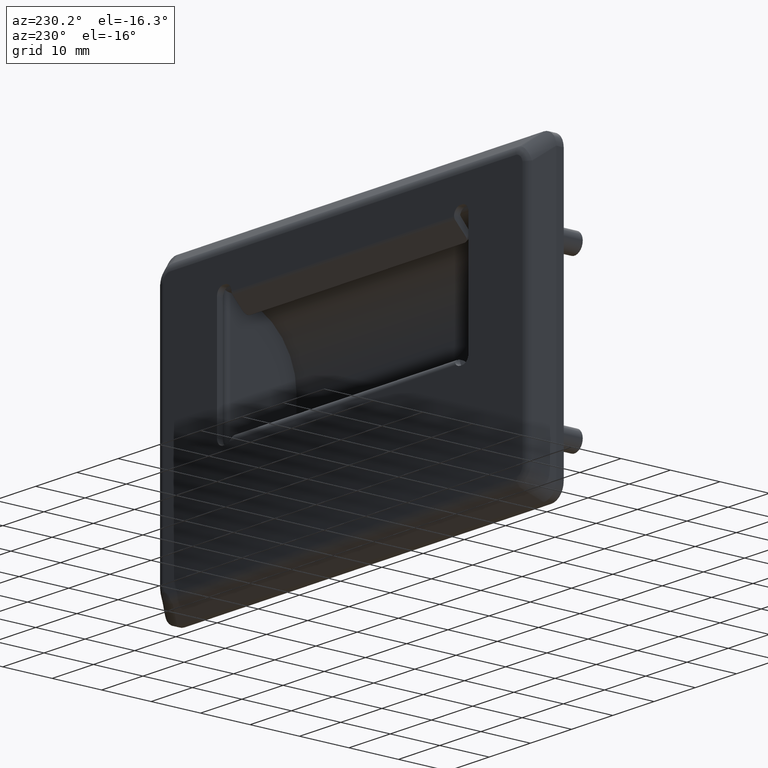
[diagram: clean part render]
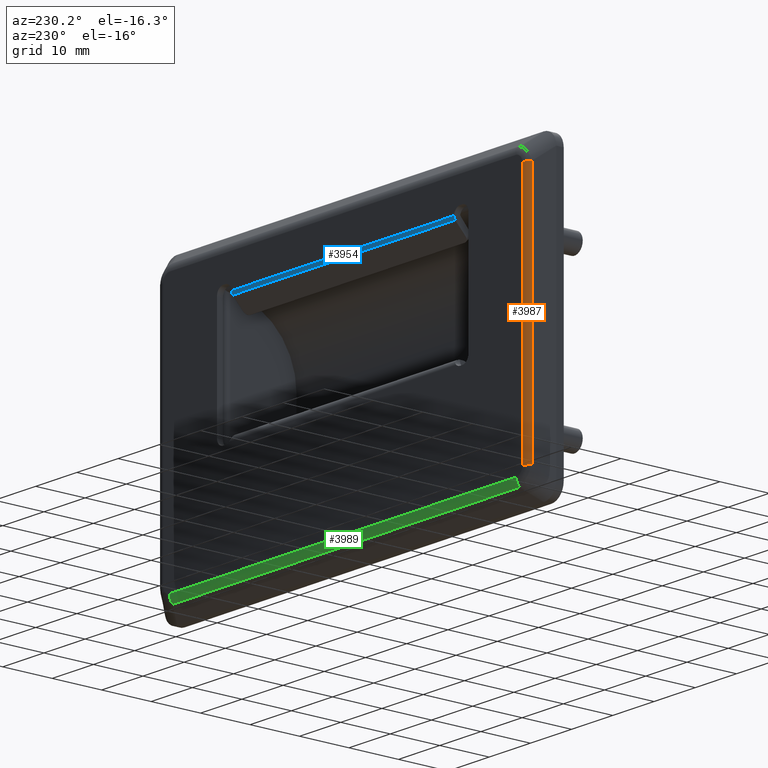
[diagram: same view with three faces highlighted in distinct colors, each labeled with its STEP entity id]
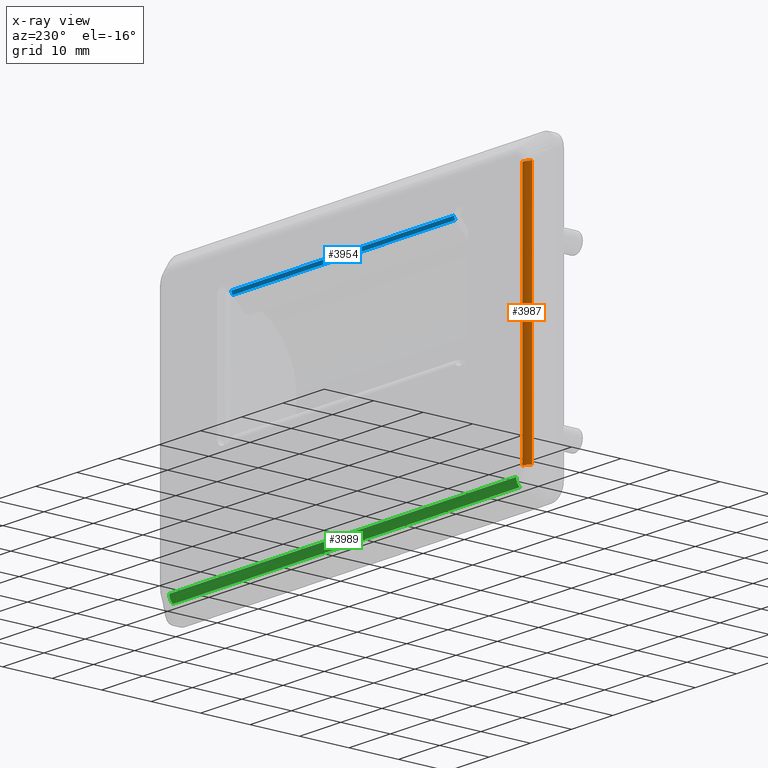
[diagram: x-ray of the same camera — body ghosted, the three highlighted faces saturated]
A machine part, auxiliary view with three faces highlighted in distinct colors.
The next image is the same camera in x-ray (body ghosted, the three faces saturated) — at least one of them is partly hidden behind the body in this view.
Their STEP definitions:

[orange] entity #3987 — the highlighted cylindrical surface (edge-blend (fillet) strip) has radius 2 mm, axis along (0, -0, 1).
#284=LINE('',#6950,#599);
#285=LINE('',#6951,#600);
#599=VECTOR('',#4994,49.1993853344517);
#600=VECTOR('',#4995,49.1993853344517);
#996=FACE_OUTER_BOUND('',#1271,.T.);
#1271=EDGE_LOOP('',(#2931,#2932,#2933,#2934));
#1533=CIRCLE('',#4299,2.);
#1534=CIRCLE('',#4301,2.);
#1782=VERTEX_POINT('',#6921);
#1783=VERTEX_POINT('',#6922);
#1784=VERTEX_POINT('',#6947);
#1785=VERTEX_POINT('',#6948);
#2188=EDGE_CURVE('',#1782,#1783,#1533,.T.);
#2191=EDGE_CURVE('',#1784,#1785,#1534,.T.);
#2192=EDGE_CURVE('',#1785,#1783,#284,.T.);
#2193=EDGE_CURVE('',#1782,#1784,#285,.T.);
#2931=ORIENTED_EDGE('',*,*,#2191,.T.);
#2932=ORIENTED_EDGE('',*,*,#2192,.T.);
#2933=ORIENTED_EDGE('',*,*,#2188,.F.);
#2934=ORIENTED_EDGE('',*,*,#2193,.T.);
#3827=CYLINDRICAL_SURFACE('',#4300,2.);
#3987=ADVANCED_FACE('',(#996),#3827,.T.);
#4299=AXIS2_PLACEMENT_3D('',#6923,#4988,#4989);
#4300=AXIS2_PLACEMENT_3D('',#6946,#4990,#4991);
#4301=AXIS2_PLACEMENT_3D('',#6949,#4992,#4993);
#4988=DIRECTION('center_axis',(-9.82593576116641E-16,5.55111512312577E-16,
1.));
#4989=DIRECTION('ref_axis',(-5.55111512312578E-16,1.,-5.55111512312578E-16));
#4990=DIRECTION('center_axis',(3.74738402996661E-16,-1.71675981616408E-32,
1.));
#4991=DIRECTION('ref_axis',(-0.424155396249723,0.90558942122368,0.));
#4992=DIRECTION('center_axis',(0.,0.,1.));
#4993=DIRECTION('ref_axis',(0.,1.,0.));
#4994=DIRECTION('',(3.7473840299666E-16,-1.71675981616408E-32,1.));
#4995=DIRECTION('',(-3.7473840299666E-16,1.71675981616408E-32,-1.));
#6921=CARTESIAN_POINT('',(3.93674989196889,5.1,-5.40030733277414));
#6922=CARTESIAN_POINT('',(2.40030733277414,4.38036879932896,-5.40030733277414));
#6923=CARTESIAN_POINT('Origin',(3.93674989196889,3.1,-5.40030733277414));
#6946=CARTESIAN_POINT('Origin',(3.93674989196887,3.1,-42.));
#6947=CARTESIAN_POINT('',(3.93674989196887,5.1,-54.5996926672258));
#6948=CARTESIAN_POINT('',(2.40030733277412,4.38036879932896,-54.5996926672258));
#6949=CARTESIAN_POINT('Origin',(3.93674989196887,3.1,-54.5996926672258));
#6950=CARTESIAN_POINT('',(2.40030733277412,4.38036879932896,-42.));
#6951=CARTESIAN_POINT('',(3.93674989196887,5.1,-42.));

[blue] entity #3954 — the highlighted cylindrical surface (edge-blend (fillet) strip) has radius 1 mm, axis along (1, 0, 0).
#93=B_SPLINE_CURVE_WITH_KNOTS('',3,(#6146,#6147,#6148,#6149),
 .UNSPECIFIED.,.F.,.F.,(4,4),(0.143297698474944,0.154757986375139),
 .UNSPECIFIED.);
#94=B_SPLINE_CURVE_WITH_KNOTS('',3,(#6157,#6158,#6159,#6160),
 .UNSPECIFIED.,.F.,.F.,(4,4),(0.160247781083361,0.171708068983555),
 .UNSPECIFIED.);
#243=LINE('',#6180,#558);
#244=LINE('',#6181,#559);
#558=VECTOR('',#4873,54.0089468677247);
#559=VECTOR('',#4874,54.);
#963=FACE_OUTER_BOUND('',#1233,.T.);
#1233=EDGE_LOOP('',(#2753,#2754,#2755,#2756,#2757,#2758));
#1499=CIRCLE('',#4218,0.999999999999999);
#1501=CIRCLE('',#4226,0.999999999999999);
#1697=VERTEX_POINT('',#6026);
#1698=VERTEX_POINT('',#6028);
#1706=VERTEX_POINT('',#6050);
#1707=VERTEX_POINT('',#6052);
#1729=VERTEX_POINT('',#6141);
#1733=VERTEX_POINT('',#6155);
#2050=EDGE_CURVE('',#1697,#1698,#1499,.T.);
#2062=EDGE_CURVE('',#1706,#1707,#1501,.T.);
#2096=EDGE_CURVE('',#1729,#1707,#93,.F.);
#2100=EDGE_CURVE('',#1697,#1733,#94,.F.);
#2110=EDGE_CURVE('',#1733,#1729,#243,.T.);
#2111=EDGE_CURVE('',#1698,#1706,#244,.T.);
#2753=ORIENTED_EDGE('',*,*,#2110,.T.);
#2754=ORIENTED_EDGE('',*,*,#2096,.T.);
#2755=ORIENTED_EDGE('',*,*,#2062,.F.);
#2756=ORIENTED_EDGE('',*,*,#2111,.F.);
#2757=ORIENTED_EDGE('',*,*,#2050,.F.);
#2758=ORIENTED_EDGE('',*,*,#2100,.T.);
#3817=CYLINDRICAL_SURFACE('',#4261,0.999999999999999);
#3954=ADVANCED_FACE('',(#963),#3817,.T.);
#4218=AXIS2_PLACEMENT_3D('',#6029,#4751,#4752);
#4226=AXIS2_PLACEMENT_3D('',#6053,#4774,#4775);
#4261=AXIS2_PLACEMENT_3D('',#6179,#4871,#4872);
#4751=DIRECTION('center_axis',(-1.,0.,0.));
#4752=DIRECTION('ref_axis',(0.,0.731903772728522,-0.681408003670163));
#4774=DIRECTION('center_axis',(1.,0.,0.));
#4775=DIRECTION('ref_axis',(0.,0.731903772728522,-0.681408003670163));
#4871=DIRECTION('center_axis',(1.,0.,0.));
#4872=DIRECTION('ref_axis',(0.,0.731903772728522,-0.681408003670163));
#4873=DIRECTION('',(1.,0.,0.));
#4874=DIRECTION('',(1.,0.,0.));
#6026=CARTESIAN_POINT('',(20.5,5.09327725737758,-10.5));
#6028=CARTESIAN_POINT('',(20.5,4.83190377272852,-11.0656483821415));
#6029=CARTESIAN_POINT('Origin',(20.5,4.1,-10.3842403784713));
#6050=CARTESIAN_POINT('',(74.5,4.83190377272852,-11.0656483821415));
#6052=CARTESIAN_POINT('',(74.5,5.09327725737758,-10.5));
#6053=CARTESIAN_POINT('Origin',(74.5,4.1,-10.3842403784713));
#6141=CARTESIAN_POINT('',(74.5044734338623,5.1,-10.3842403784713));
#6146=CARTESIAN_POINT('Ctrl Pts',(74.5,5.09327725737758,-10.5));
#6147=CARTESIAN_POINT('Ctrl Pts',(74.5,5.09781112916848,-10.4610970416256));
#6148=CARTESIAN_POINT('Ctrl Pts',(74.5015253481069,5.1,-10.4223274118276));
#6149=CARTESIAN_POINT('Ctrl Pts',(74.5044734338623,5.1,-10.3842403784713));
#6155=CARTESIAN_POINT('',(20.4955265661377,5.1,-10.3842403784713));
#6157=CARTESIAN_POINT('Ctrl Pts',(20.4955265661377,5.1,-10.3842403784713));
#6158=CARTESIAN_POINT('Ctrl Pts',(20.4984746518931,5.1,-10.4223274118276));
#6159=CARTESIAN_POINT('Ctrl Pts',(20.5,5.09781112916848,-10.4610970416256));
#6160=CARTESIAN_POINT('Ctrl Pts',(20.5,5.09327725737758,-10.5));
#6179=CARTESIAN_POINT('Origin',(47.5,4.1,-10.3842403784713));
#6180=CARTESIAN_POINT('',(47.5,5.1,-10.3842403784713));
#6181=CARTESIAN_POINT('',(47.5,4.83190377272852,-11.0656483821415));

[green] entity #3989 — the highlighted cylindrical surface (edge-blend (fillet) strip) has radius 2 mm, axis along (-1, 0, -0).
#286=LINE('',#7019,#601);
#287=LINE('',#7020,#602);
#601=VECTOR('',#5002,84.1993853344517);
#602=VECTOR('',#5003,84.1993853344517);
#998=FACE_OUTER_BOUND('',#1273,.T.);
#1273=EDGE_LOOP('',(#2939,#2940,#2941,#2942));
#1535=CIRCLE('',#4302,2.);
#1536=CIRCLE('',#4304,2.);
#1786=VERTEX_POINT('',#6992);
#1787=VERTEX_POINT('',#6993);
#1788=VERTEX_POINT('',#7016);
#1789=VERTEX_POINT('',#7017);
#2194=EDGE_CURVE('',#1786,#1787,#1535,.T.);
#2197=EDGE_CURVE('',#1788,#1789,#1536,.T.);
#2198=EDGE_CURVE('',#1789,#1787,#286,.T.);
#2199=EDGE_CURVE('',#1786,#1788,#287,.T.);
#2939=ORIENTED_EDGE('',*,*,#2197,.T.);
#2940=ORIENTED_EDGE('',*,*,#2198,.T.);
#2941=ORIENTED_EDGE('',*,*,#2194,.F.);
#2942=ORIENTED_EDGE('',*,*,#2199,.T.);
#3828=CYLINDRICAL_SURFACE('',#4303,2.);
#3989=ADVANCED_FACE('',(#998),#3828,.T.);
#4302=AXIS2_PLACEMENT_3D('',#6994,#4996,#4997);
#4303=AXIS2_PLACEMENT_3D('',#7015,#4998,#4999);
#4304=AXIS2_PLACEMENT_3D('',#7018,#5000,#5001);
#4996=DIRECTION('center_axis',(-1.,1.11022302462516E-15,2.3703723568981E-15));
#4997=DIRECTION('ref_axis',(1.11022302462516E-15,1.,0.));
#4998=DIRECTION('center_axis',(-1.,1.02721135530479E-32,-8.12318684598419E-17));
#4999=DIRECTION('ref_axis',(0.,0.905589421223679,-0.424155396249725));
#5000=DIRECTION('center_axis',(-1.,0.,0.));
#5001=DIRECTION('ref_axis',(0.,1.,0.));
#5002=DIRECTION('',(-1.,1.02721135530479E-32,-8.12318684598419E-17));
#5003=DIRECTION('',(1.,-1.02721135530479E-32,8.12318684598419E-17));
#6992=CARTESIAN_POINT('',(5.40030733277413,5.1,-56.0632501080311));
#6993=CARTESIAN_POINT('',(5.40030733277412,4.38036879932897,-57.5996926672258));
#6994=CARTESIAN_POINT('Origin',(5.40030733277413,3.1,-56.0632501080311));
#7015=CARTESIAN_POINT('Origin',(68.25,3.1,-56.0632501080311));
#7016=CARTESIAN_POINT('',(89.5996926672258,5.1,-56.0632501080311));
#7017=CARTESIAN_POINT('',(89.5996926672258,4.38036879932896,-57.5996926672259));
#7018=CARTESIAN_POINT('Origin',(89.5996926672258,3.1,-56.0632501080311));
#7019=CARTESIAN_POINT('',(68.25,4.38036879932896,-57.5996926672259));
#7020=CARTESIAN_POINT('',(68.25,5.1,-56.0632501080311));